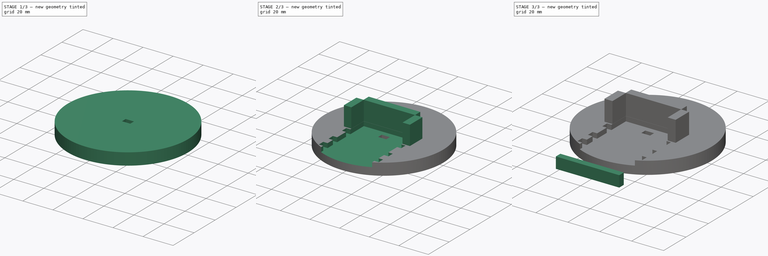
[diagram: build sequence overview — one tinted view per stage of 3, left to right]
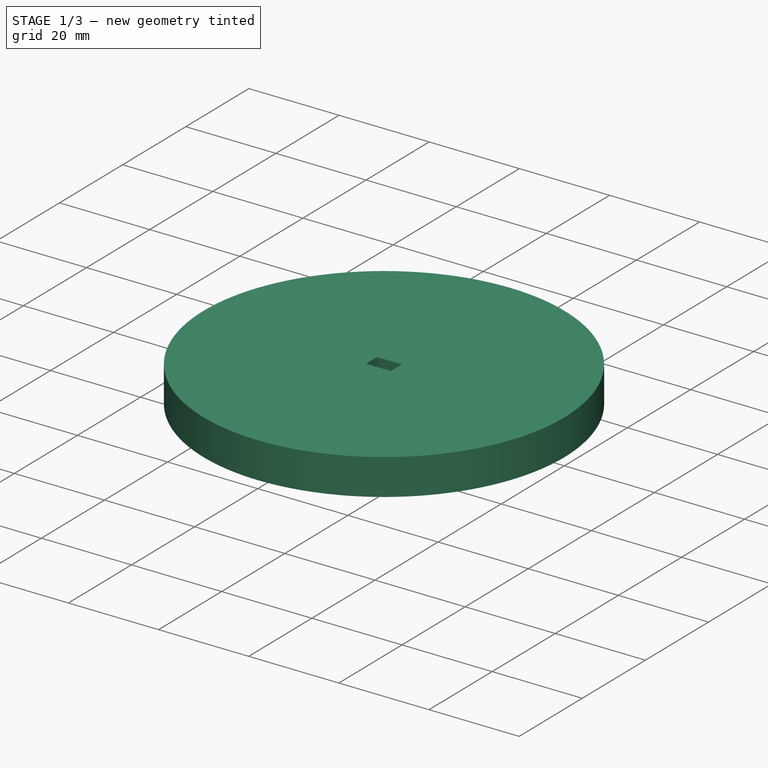
[diagram: stage 1 of 3 — iso view after this stage's code; geometry added in this stage tinted green]
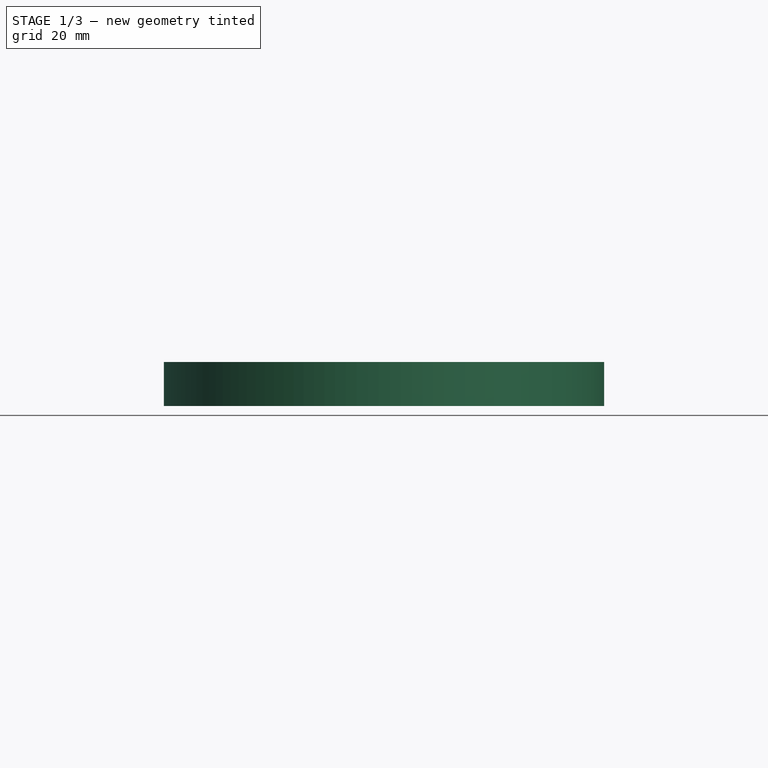
[diagram: stage 1 of 3 — front view after this stage's code; geometry added in this stage tinted green]
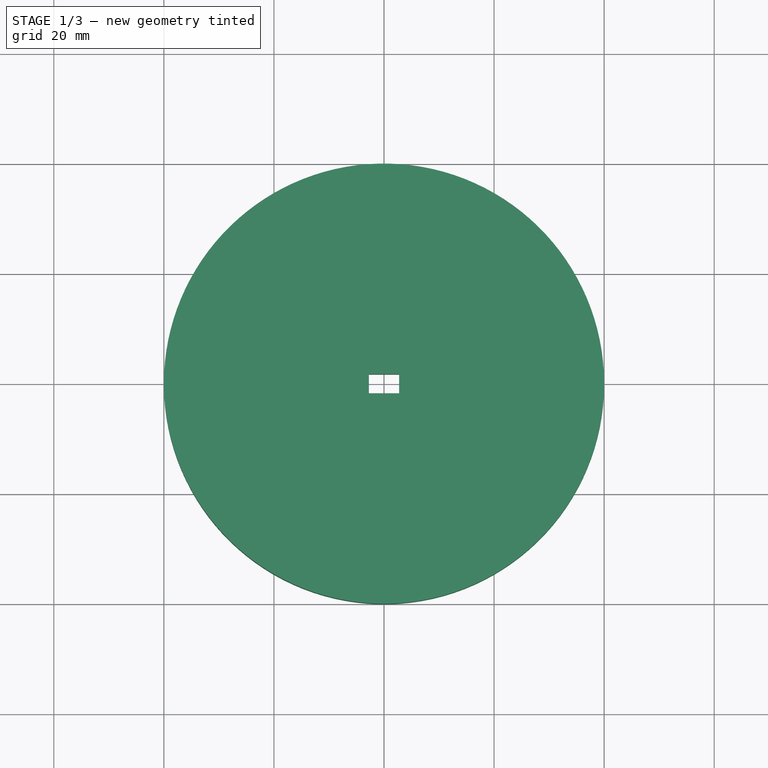
[diagram: stage 1 of 3 — top view after this stage's code; geometry added in this stage tinted green]
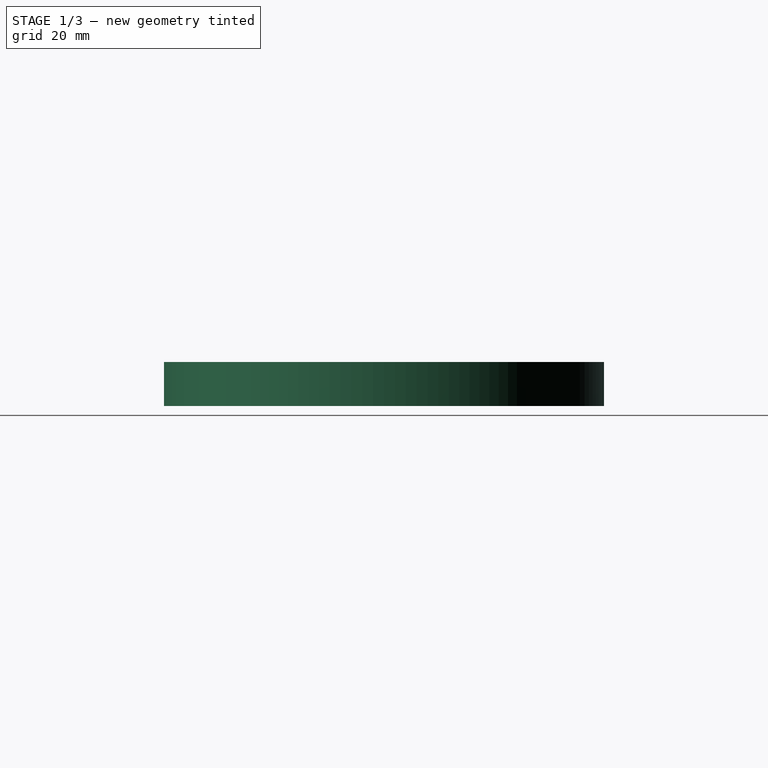
[diagram: stage 1 of 3 — right view after this stage's code; geometry added in this stage tinted green]
FCSTD DOCUMENT  (FreeCAD 1.0R39319 (Git))
Label: cloud0
License: All rights reserved
LicenseURL: https://en.wikipedia.org/wiki/All_rights_reserved
objects: Sketcher::SketchObject×5, PartDesign::Pad×3, PartDesign::Pocket×3, PartDesign::Body×2, PartDesign::ShapeBinder×1
note: 31 computed .brp shape members not serialized (recipe doc carries the construction recipe); baked Part::Feature solids carry a one-line shape summary decoded from their .brp

FEATURE [Sketcher::SketchObject] Sketch
  ArcFitTolerance = 1e-06
  AttachmentSupport = -> [XY_Plane]
  FullyConstrained = true
  MakeInternals = false
  MapMode = 5
  sketch-geometry (1):
    g0: Circle CenterX=0 CenterY=0 CenterZ=0 NormalX=0 NormalY=0 NormalZ=1 AngleXU=0 Radius=40
  constraints (2):
    c: Diameter(g0) = 80
    c: Coincident(g0,g-1)
FEATURE [PartDesign::Pad] Pad
  Direction = (0,0,1)
  Length = 8
  Length2 = 10
  Profile = -> Sketch [Edge1]
  ReferenceAxis = -> Sketch [N_Axis]
  Refine = true
  Suppressed = false
  Type = 0
FEATURE [Sketcher::SketchObject] Sketch001
  ArcFitTolerance = 1e-06
  AttachmentSupport = -> [Pad]
  FullyConstrained = false
  MakeInternals = false
  MapMode = 5
  Placement = pos=(0,0,8) rot=(0,0,1;0rad)
  sketch-geometry (5):
    g0: LineSegment StartX=-2.75 StartY=-1.75 StartZ=0 EndX=2.75 EndY=-1.75 EndZ=0
    g1: LineSegment StartX=2.75 StartY=-1.75 StartZ=0 EndX=2.75 EndY=1.75 EndZ=0
    g2: LineSegment StartX=2.75 StartY=1.75 StartZ=0 EndX=-2.75 EndY=1.75 EndZ=0
    g3: LineSegment StartX=-2.75 StartY=1.75 StartZ=0 EndX=-2.75 EndY=-1.75 EndZ=0
    g4: GeomPoint [constr] X=0 Y=0 Z=0
  constraints (11):
    c: Coincident(g0,g1)
    c: Coincident(g1,g2)
    c: Coincident(g2,g3)
    c: Coincident(g3,g0)
    c: Horizontal(g0)
    c: Horizontal(g2)
    c: Vertical(g1)
    c: Vertical(g3)
    c: Symmetric(g2,g0,g4)
    c: Distance(g1,g3) = 5.5
    c: Distance(g0,g2) = 3.5
FEATURE [PartDesign::Pocket] Pocket
  BaseFeature = -> Pad
  Direction = (0,0,-1)
  Length = 8
  Length2 = 5
  Profile = -> Sketch001
  ReferenceAxis = -> Sketch001 [N_Axis]
  Refine = true
  Suppressed = false
  Type = 0
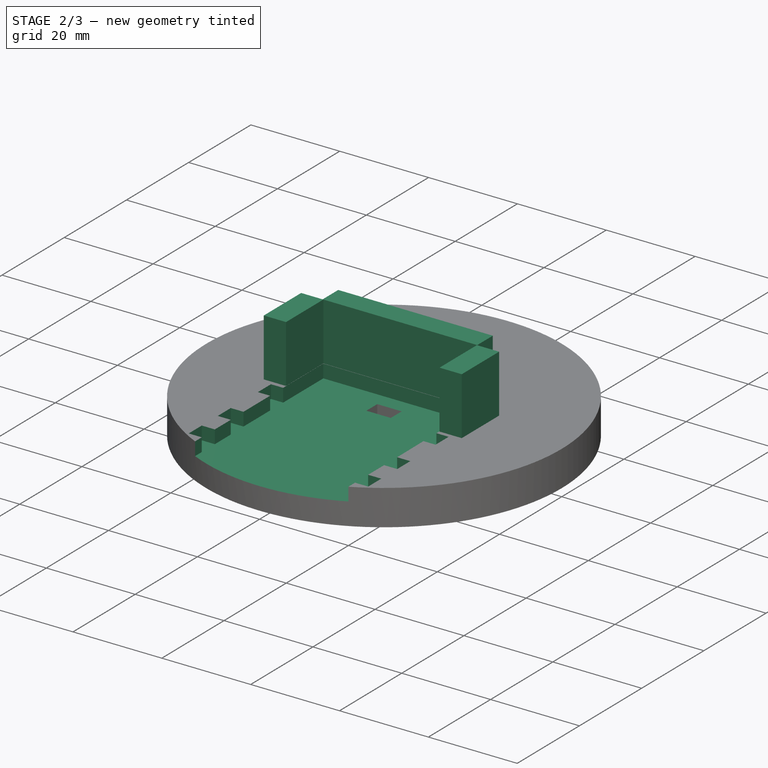
[diagram: stage 2 of 3 — iso view after this stage's code; geometry added in this stage tinted green]
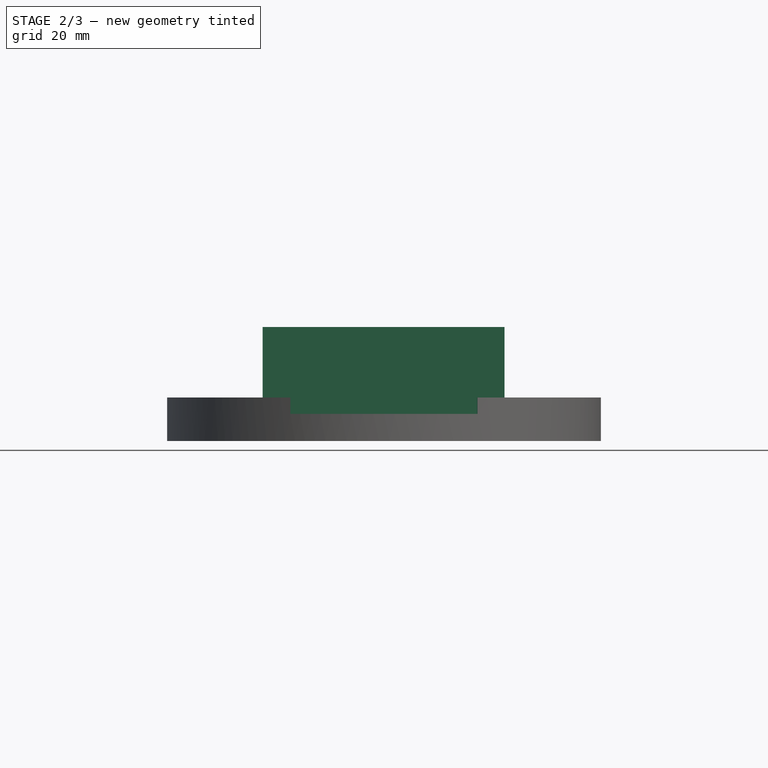
[diagram: stage 2 of 3 — front view after this stage's code; geometry added in this stage tinted green]
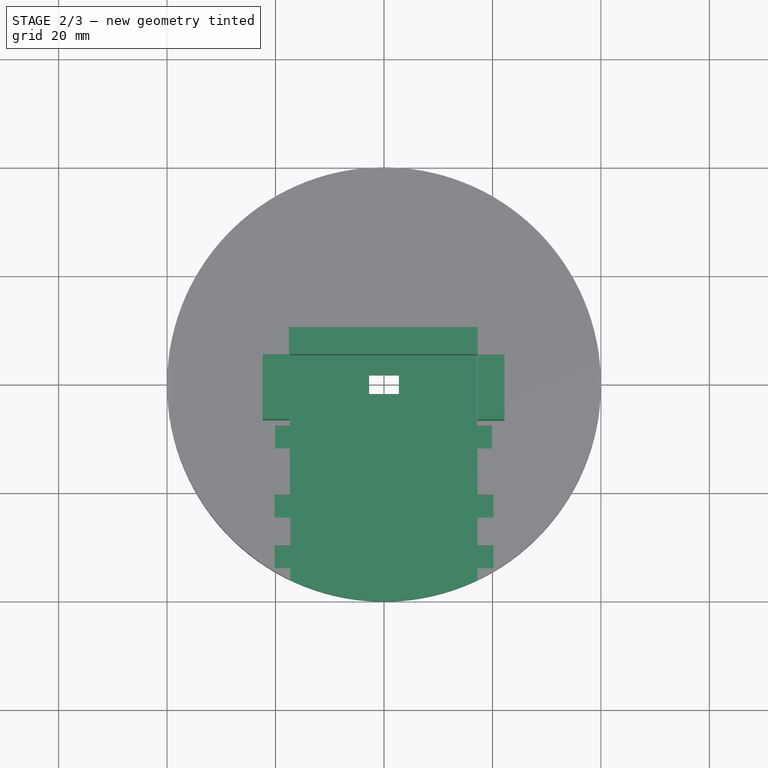
[diagram: stage 2 of 3 — top view after this stage's code; geometry added in this stage tinted green]
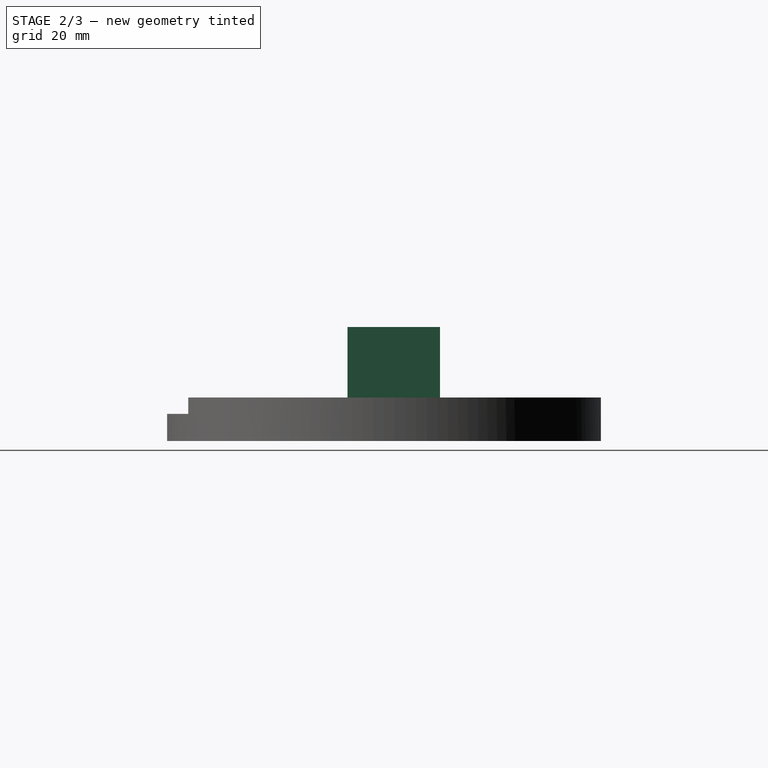
[diagram: stage 2 of 3 — right view after this stage's code; geometry added in this stage tinted green]
FEATURE [Sketcher::SketchObject] Sketch002
  ArcFitTolerance = 1e-06
  AttachmentSupport = -> [Pocket]
  FullyConstrained = false
  MakeInternals = false
  MapMode = 5
  Placement = pos=(0,0,8) rot=(0,0,1;0rad)
  sketch-geometry (32):
    g0: LineSegment StartX=-17.3442 StartY=-11.8489 StartZ=0 EndX=-17.3442 EndY=-20.4027 EndZ=0
    g1: LineSegment StartX=-17.2591 StartY=-40.2563 StartZ=0 EndX=17.2431 EndY=-40.2563 EndZ=0
    g2: LineSegment StartX=17.2431 StartY=-40.2563 StartZ=0 EndX=17.2431 EndY=-33.9347 EndZ=0
    g3: GeomPoint [constr] X=-0.0505323 Y=-25.0026 Z=0
    g4: LineSegment StartX=-20.2 StartY=-24.6027 StartZ=0 EndX=-17.2591 EndY=-24.6027 EndZ=0
    g5: LineSegment StartX=20.2 StartY=-24.6027 StartZ=0 EndX=20.2 EndY=-20.4027 EndZ=0
    g6: LineSegment StartX=20.2 StartY=-20.4027 StartZ=0 EndX=17.2409 EndY=-20.4027 EndZ=0
    g7: LineSegment StartX=-20.2 StartY=-20.4027 StartZ=0 EndX=-20.2 EndY=-24.6027 EndZ=0
    g8: GeomPoint [constr] X=0 Y=-22.5027 Z=0
    g9: LineSegment StartX=-20.2 StartY=-33.9347 StartZ=0 EndX=-17.2591 EndY=-33.9347 EndZ=0
    g10: LineSegment StartX=20.2 StartY=-33.9347 StartZ=0 EndX=20.2 EndY=-29.7347 EndZ=0
    g11: LineSegment StartX=20.2 StartY=-29.7347 StartZ=0 EndX=17.2409 EndY=-29.7347 EndZ=0
    g12: LineSegment StartX=-20.2 StartY=-29.7347 StartZ=0 EndX=-20.2 EndY=-33.9347 EndZ=0
    g13: GeomPoint [constr] X=0 Y=-31.8347 Z=0
    g14: LineSegment StartX=-17.2591 StartY=-24.6027 StartZ=0 EndX=-17.2591 EndY=-29.7347 EndZ=0
    g15: LineSegment StartX=-17.3442 StartY=-20.4027 StartZ=0 EndX=-20.2 EndY=-20.4027 EndZ=0
    g16: LineSegment StartX=17.2409 StartY=-20.4027 StartZ=0 EndX=17.1726 EndY=-11.8489 EndZ=0
    g17: LineSegment StartX=17.2409 StartY=-24.6027 StartZ=0 EndX=20.2 EndY=-24.6027 EndZ=0
    g18: LineSegment StartX=-17.2591 StartY=-29.7347 StartZ=0 EndX=-20.2 EndY=-29.7347 EndZ=0
    g19: LineSegment StartX=17.2431 StartY=-33.9347 StartZ=0 EndX=20.2 EndY=-33.9347 EndZ=0
    g20: LineSegment StartX=-17.2591 StartY=-33.9347 StartZ=0 EndX=-17.2591 EndY=-40.2563 EndZ=0
    g21: LineSegment StartX=17.2409 StartY=-29.7347 StartZ=0 EndX=17.2409 EndY=-24.6027 EndZ=0
    g22: LineSegment StartX=17.1558 StartY=-7.64893 StartZ=0 EndX=17.1558 EndY=5.25107 EndZ=0
    g23: LineSegment StartX=17.1558 StartY=5.25107 StartZ=0 EndX=-17.3442 EndY=5.25107 EndZ=0
    g24: LineSegment StartX=-17.3442 StartY=5.25107 StartZ=0 EndX=-17.3442 EndY=-7.64893 EndZ=0
    g25: LineSegment StartX=-20.0942 StartY=-11.8489 StartZ=0 EndX=-17.3442 EndY=-11.8489 EndZ=0
    g26: LineSegment StartX=19.9058 StartY=-11.8489 StartZ=0 EndX=19.9058 EndY=-7.64893 EndZ=0
    g27: LineSegment StartX=19.9058 StartY=-7.64893 StartZ=0 EndX=17.1558 EndY=-7.64893 EndZ=0
    g28: LineSegment StartX=-20.0942 StartY=-7.64893 StartZ=0 EndX=-20.0942 EndY=-11.8489 EndZ=0
    g29: GeomPoint [constr] X=-0.0941655 Y=-9.74893 Z=0
    g30: LineSegment StartX=17.1726 StartY=-11.8489 StartZ=0 EndX=19.9058 EndY=-11.8489 EndZ=0
    g31: LineSegment StartX=-17.3442 StartY=-7.64893 StartZ=0 EndX=-20.0942 EndY=-7.64893 EndZ=0
  constraints (62):
    c: Coincident(g20,g1)
    c: Coincident(g1,g2)
    c: Vertical(g0)
    c: Vertical(g2)
    c: Horizontal(g1)
    c: Coincident(g17,g5)
    c: Coincident(g5,g6)
    c: Coincident(g15,g7)
    c: Coincident(g7,g4)
    c: Horizontal(g4)
    c: Horizontal(g6)
    c: Vertical(g5)
    c: Vertical(g7)
    c: Symmetric(g6,g4,g8)
    c: Distance(g5,g7) = 40.4
    c: Distance(g4,g15) = 4.2
    c: PointOnObject(g8,g-2)
    c: Coincident(g19,g10)
    c: Coincident(g10,g11)
    c: Coincident(g18,g12)
    c: Coincident(g12,g9)
    c: Horizontal(g9)
    c: Horizontal(g11)
    c: Vertical(g10)
    c: Vertical(g12)
    c: Symmetric(g11,g9,g13)
    c: Distance(g10,g12) = 40.4
    c: Distance(g9,g18) = 4.2
    c: PointOnObject(g13,g-2)
    c: PointOnObject(g0,g15)
    c: PointOnObject(g6,g16)
    c: PointOnObject(g15,g0)
    c: PointOnObject(g21,g17)
    c: PointOnObject(g16,g6)
    c: Coincident(g4,g14)
    c: PointOnObject(g17,g21)
    c: PointOnObject(g11,g21)
    c: PointOnObject(g9,g20)
    c: Coincident(g14,g18)
    c: PointOnObject(g20,g9)
    c: Coincident(g2,g19)
    c: PointOnObject(g21,g11)
    c: Coincident(g22,g23)
    c: Coincident(g23,g24)
    c: Horizontal(g23)
    c: Vertical(g22)
    c: Vertical(g24)
    c: Coincident(g30,g26)
    c: Coincident(g26,g27)
    c: Coincident(g31,g28)
    c: Coincident(g28,g25)
    c: Horizontal(g25)
    c: Horizontal(g27)
    c: Vertical(g26)
    c: Vertical(g28)
    c: Symmetric(g27,g25,g29)
    c: Distance(g26,g28) = 40
    c: Distance(g25,g31) = 4.2
    c: Coincident(g27,g22)
    c: Coincident(g24,g31)
    c: Coincident(g0,g25)
    c: Coincident(g16,g30)
FEATURE [PartDesign::Pocket] Pocket001
  BaseFeature = -> Pocket
  Direction = (0,0,-1)
  Length = 3
  Length2 = 5
  Profile = -> Sketch002
  ReferenceAxis = -> Sketch002 [N_Axis]
  Refine = true
  Suppressed = false
  Type = 0
FEATURE [PartDesign::Body] Body001
  AllowCompound = false
  Group = -> [Sketch004,Pad002,CopyPad001,Sketch005,Pocket002]
  Origin = -> Origin001
  Tip = -> Pocket002
FEATURE [PartDesign::Pad] Pad001
  BaseFeature = -> Pocket001
  Direction = (0,0,1)
  Length = 13
  Length2 = 10
  Refine = true
  Suppressed = false
  Type = 0
FEATURE [PartDesign::Body] Body
  AllowCompound = false
  Group = -> [Sketch,Pad,Sketch001,Pocket,Sketch002,Pocket001,Pad001]
  Origin = -> Origin
  Tip = -> Pad001
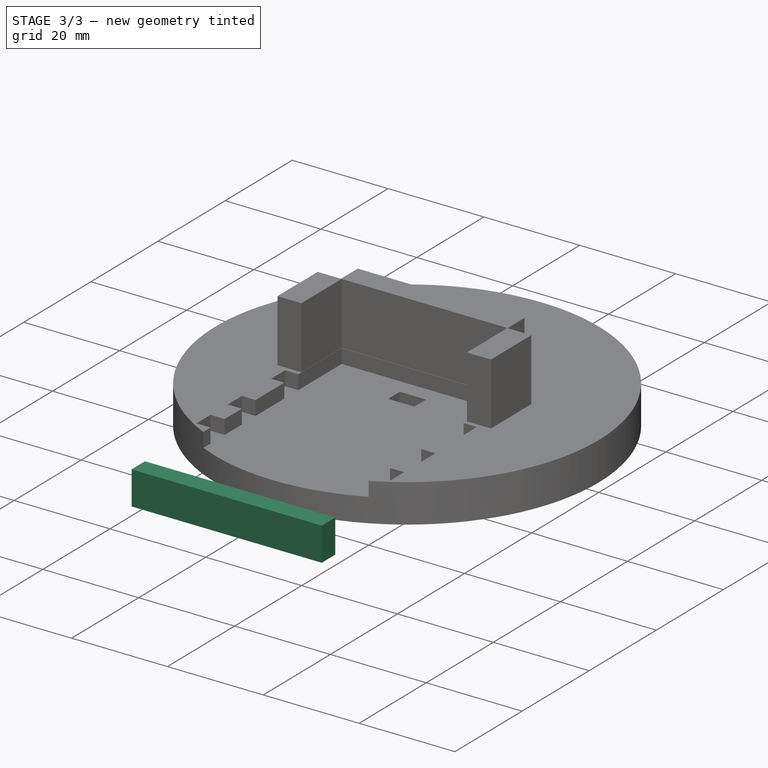
[diagram: stage 3 of 3 — iso view after this stage's code; geometry added in this stage tinted green]
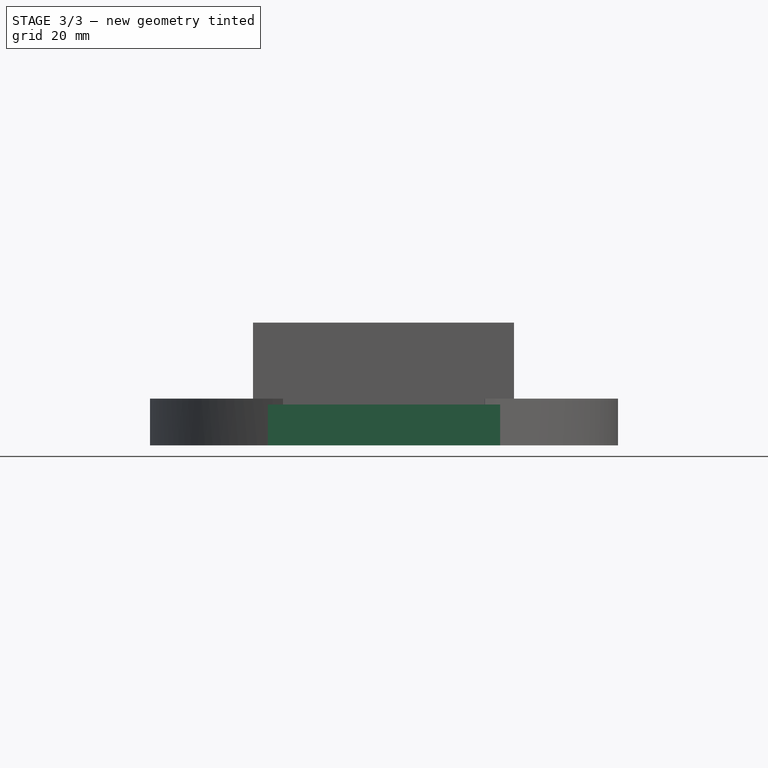
[diagram: stage 3 of 3 — front view after this stage's code; geometry added in this stage tinted green]
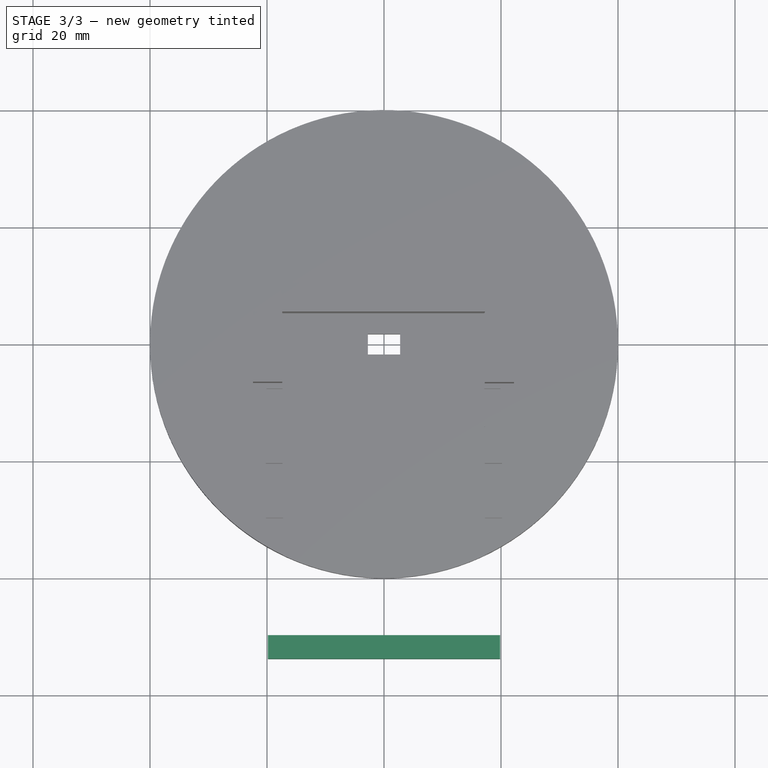
[diagram: stage 3 of 3 — top view after this stage's code; geometry added in this stage tinted green]
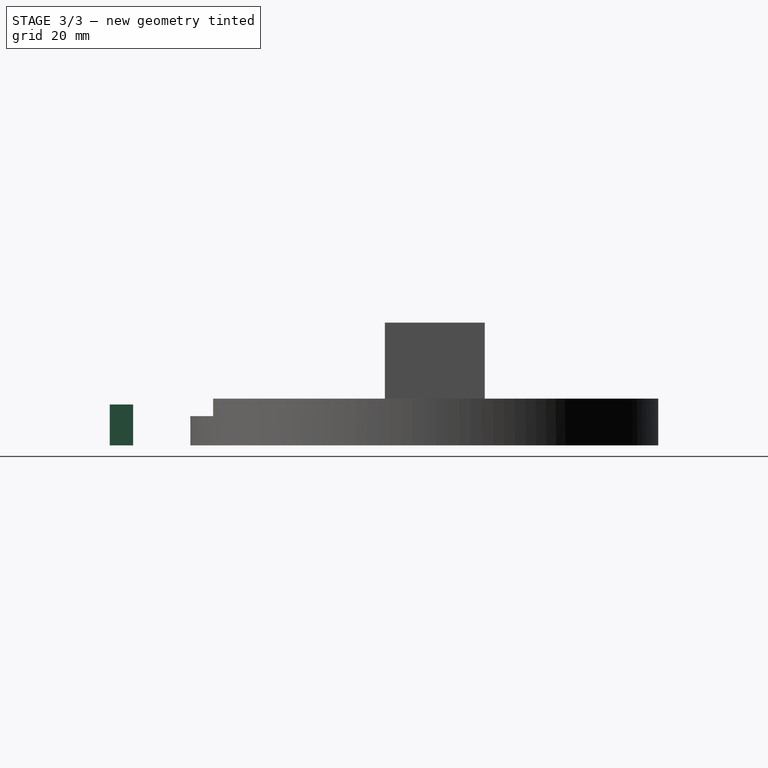
[diagram: stage 3 of 3 — right view after this stage's code; geometry added in this stage tinted green]
FEATURE [Sketcher::SketchObject] Sketch004
  ArcFitTolerance = 1e-06
  AttachmentSupport = -> [XY_Plane001]
  FullyConstrained = false
  MakeInternals = false
  MapMode = 5
  sketch-geometry (15):
    g0: LineSegment StartX=-19.7373 StartY=-69.2581 StartZ=0 EndX=19.9627 EndY=-69.2581 EndZ=0
    g1: LineSegment StartX=19.9627 StartY=-69.2581 StartZ=0 EndX=19.9627 EndY=-65.2581 EndZ=0
    g2: LineSegment StartX=19.9627 StartY=-65.2581 StartZ=0 EndX=-19.7373 EndY=-65.2581 EndZ=0
    g3: LineSegment StartX=-19.7373 StartY=-65.2581 StartZ=0 EndX=-19.7373 EndY=-69.2581 EndZ=0
    g4: GeomPoint [constr] X=0.112726 Y=-67.2581 Z=0
    g5: LineSegment StartX=-19.85 StartY=-90.3648 StartZ=0 EndX=19.85 EndY=-90.3648 EndZ=0
    g6: LineSegment StartX=19.85 StartY=-90.3648 StartZ=0 EndX=19.85 EndY=-86.3648 EndZ=0
    g7: LineSegment StartX=19.85 StartY=-86.3648 StartZ=0 EndX=-19.85 EndY=-86.3648 EndZ=0
    g8: LineSegment StartX=-19.85 StartY=-86.3648 StartZ=0 EndX=-19.85 EndY=-90.3648 EndZ=0
    g9: GeomPoint [constr] X=0 Y=-88.3648 Z=0
    g10: LineSegment StartX=-19.85 StartY=-53.7728 StartZ=0 EndX=19.85 EndY=-53.7728 EndZ=0
    g11: LineSegment StartX=19.85 StartY=-53.7728 StartZ=0 EndX=19.85 EndY=-49.7728 EndZ=0
    g12: LineSegment StartX=19.85 StartY=-49.7728 StartZ=0 EndX=-19.85 EndY=-49.7728 EndZ=0
    g13: LineSegment StartX=-19.85 StartY=-49.7728 StartZ=0 EndX=-19.85 EndY=-53.7728 EndZ=0
    g14: GeomPoint [constr] X=0 Y=-51.7728 Z=0
  constraints (35):
    c: Coincident(g0,g1)
    c: Coincident(g1,g2)
    c: Coincident(g2,g3)
    c: Coincident(g3,g0)
    c: Horizontal(g0)
    c: Horizontal(g2)
    c: Vertical(g1)
    c: Vertical(g3)
    c: Symmetric(g2,g0,g4)
    c: Distance(g1,g3) = 39.7
    c: Distance(g0,g2) = 4
    c: Coincident(g5,g6)
    c: Coincident(g6,g7)
    c: Coincident(g7,g8)
    c: Coincident(g8,g5)
    c: Horizontal(g5)
    c: Horizontal(g7)
    c: Vertical(g6)
    c: Vertical(g8)
    c: Symmetric(g7,g5,g9)
    c: Distance(g6,g8) = 39.7
    c: Distance(g5,g7) = 4
    c: PointOnObject(g9,g-2)
    c: Coincident(g10,g11)
    c: Coincident(g11,g12)
    c: Coincident(g12,g13)
    c: Coincident(g13,g10)
    c: Horizontal(g10)
    c: Horizontal(g12)
    c: Vertical(g11)
    c: Vertical(g13)
    c: Symmetric(g12,g10,g14)
    c: Distance(g11,g13) = 39.7
    c: Distance(g10,g12) = 4
    c: PointOnObject(g14,g-2)
FEATURE [PartDesign::Pad] Pad002
  Direction = (0,0,1)
  Length = 7
  Length2 = 10
  Profile = -> Sketch004 [Edge9,Edge11,Edge10,Vertex12,Edge12,Vertex9]
  ReferenceAxis = -> Sketch004 [N_Axis]
  Refine = true
  Suppressed = false
  Type = 0
FEATURE [PartDesign::ShapeBinder] CopyPad001
  TraceSupport = false
FEATURE [Sketcher::SketchObject] Sketch005
  ArcFitTolerance = 1e-06
  AttachmentSupport = -> [CopyPad001]
  FullyConstrained = false
  MakeInternals = false
  MapMode = 5
  Placement = pos=(0,0,8) rot=(0,0,1;0rad)
  sketch-geometry (3):
    g0: Circle CenterX=-39.8266 CenterY=0 CenterZ=0 NormalX=0 NormalY=0 NormalZ=1 AngleXU=0 Radius=10
    g1: Circle CenterX=39.6318 CenterY=0 CenterZ=0 NormalX=0 NormalY=0 NormalZ=1 AngleXU=0 Radius=10
    g2: Circle CenterX=0 CenterY=39.8832 CenterZ=0 NormalX=0 NormalY=0 NormalZ=1 AngleXU=0 Radius=20
  constraints (6):
    c: Diameter(g0) = 20
    c: PointOnObject(g0,g-1)
    c: Diameter(g1) = 20
    c: PointOnObject(g1,g-1)
    c: Diameter(g2) = 40
    c: PointOnObject(g2,g-2)
FEATURE [PartDesign::Pocket] Pocket002
  BaseFeature = -> Pad002
  Direction = (0,0,-1)
  Length = 8
  Length2 = 5
  Profile = -> Sketch005
  ReferenceAxis = -> Sketch005 [N_Axis]
  Refine = true
  Suppressed = false
  Type = 0
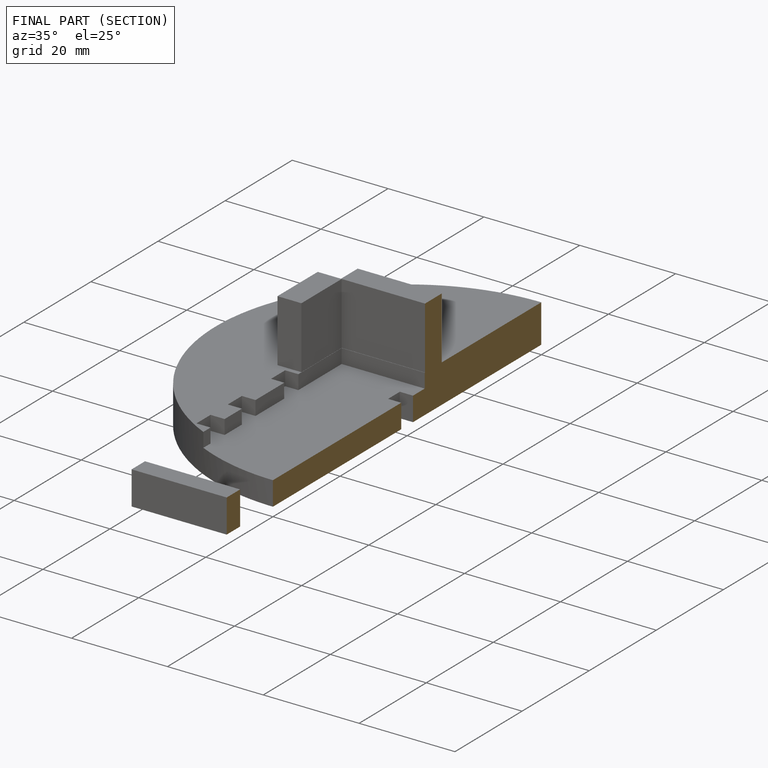
[diagram: finished part — half-section view (interior)]
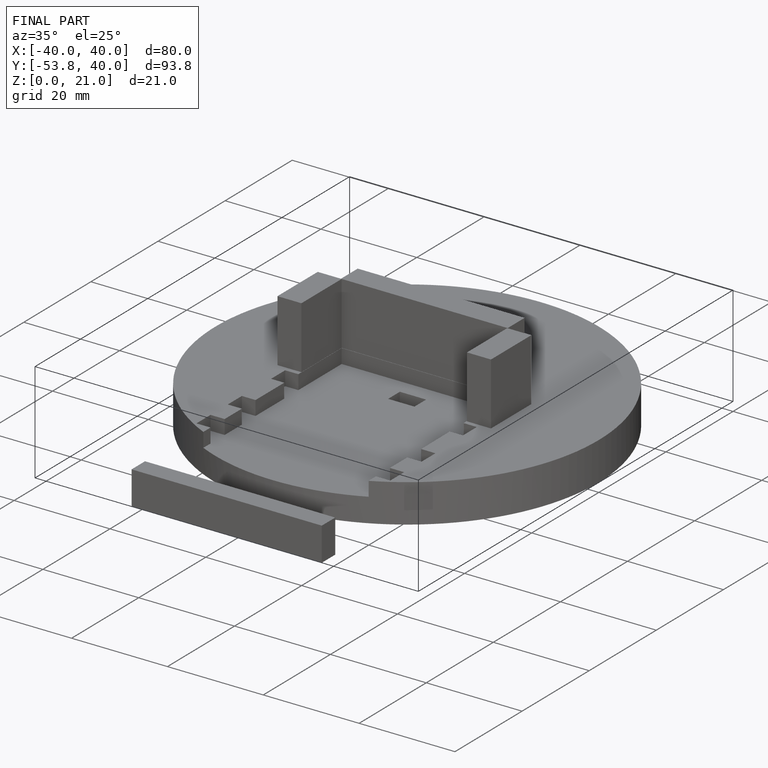
[diagram: finished part — iso view with bounding-box wireframe]
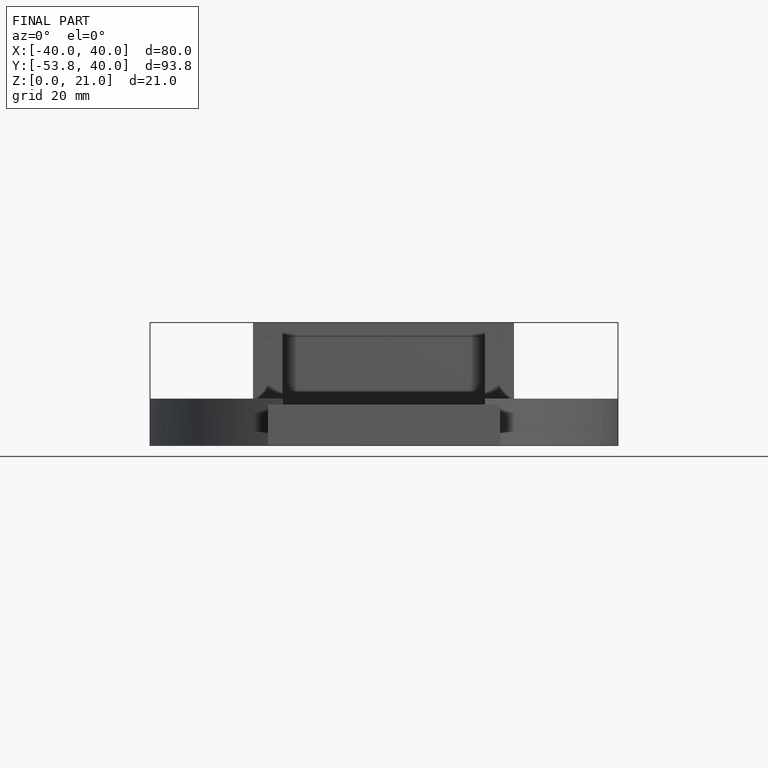
[diagram: finished part — front view with bounding-box wireframe]
